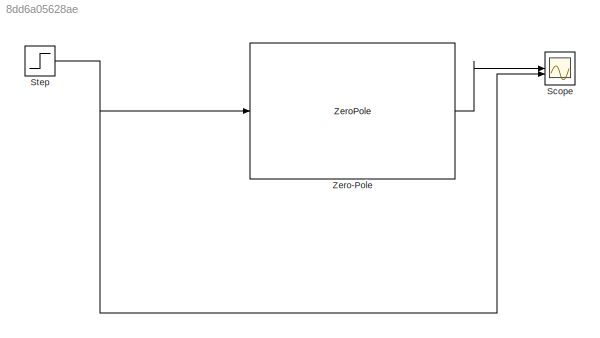
MODEL slx_8dd6a05628ae
KIND model
CONFIG AbsTol = auto
CONFIG EnableMultiTasking = off
CONFIG FixedStep = auto
CONFIG MaxStep = auto
CONFIG MinStep = auto
CONFIG RelTol = 1e-3
CONFIG SampleTimeConstraint = Unconstrained
CONFIG SolverName = VariableStepAuto
CONFIG StartTime = 0.0
CONFIG StopTime = 10.0
BLOCK [Scope] Scope
  Floating = off
  NumInputPorts = 2
  ScopeSpecificationString = Simulink.scopes.TimeScopeBlockCfg('CurrentConfiguration', extmgr.ConfigurationSet(extmgr.Configuration('Core','General UI',true),extmgr.Configuration('Core','Source UI',true),extmgr.Configuration('Sources','WiredSimulink',true),extmgr.Configuration('Visuals','Time Domain',true,'SerializedDisplays',{struct('MinYLimReal','-0.66661','MaxYLimReal','5.99948','YLabelReal','','MinYLimMag','0.00000','MaxY...<+1454ch>
BLOCK [Step] Step
  SampleTime = 0
BLOCK [ZeroPole] Zero-Pole
  Gain = [10]
  Poles = [-1 -3 -5]
  Zeros = [-4 -2]
NET Step:1 -> Scope:2, Zero-Pole:1
LINE Zero-Pole:1 -> Scope:1
note: NET lines group one-source signal fan-out (src -> all destinations, sorted); 1:1 wires keep LINE
